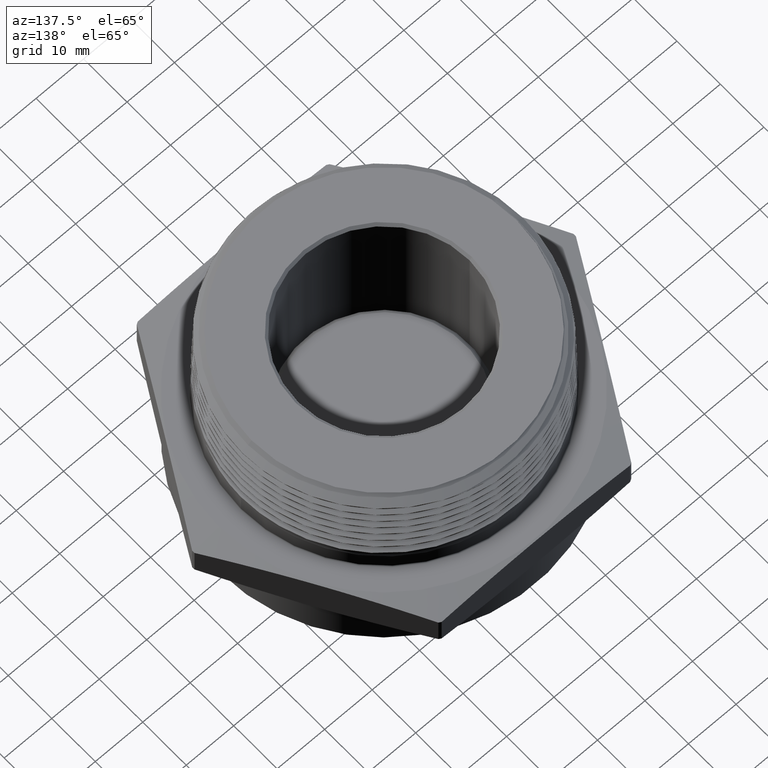
[diagram: clean part render]
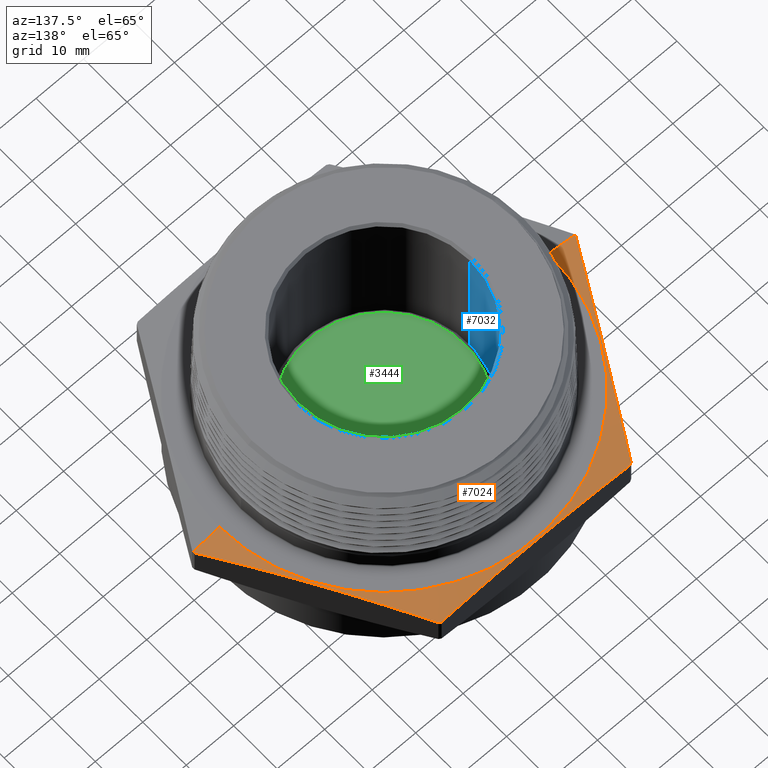
[diagram: same view with three faces highlighted in distinct colors, each labeled with its STEP entity id]
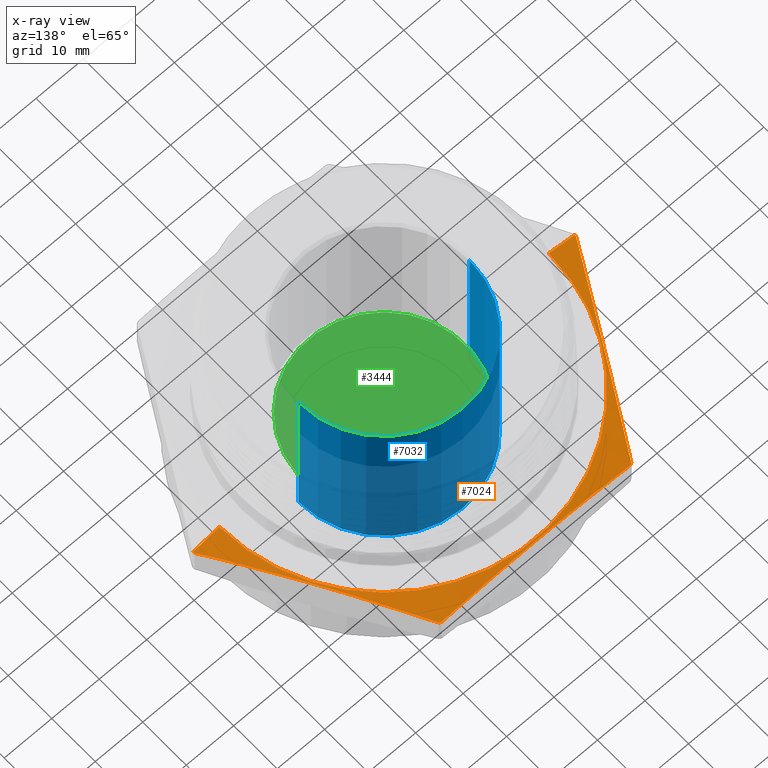
[diagram: x-ray of the same camera — body ghosted, the three highlighted faces saturated]
A machine part, auxiliary view with three faces highlighted in distinct colors.
The next image is the same camera in x-ray (body ghosted, the three faces saturated) — at least one of them is partly hidden behind the body in this view.
Their STEP definitions:

[orange] entity #7024 — the highlighted conical surface has half-angle 78 deg.
#15 = B_SPLINE_CURVE_WITH_KNOTS ( 'NONE', 3,
 ( #1078, #1076, #1087, #1089, #1091, #1093, #1095, #1097, #1099 ),
 .UNSPECIFIED., .F., .F.,
 ( 4, 2, 1, 2, 4 ),
 ( 1.903613379330127500E-006, 0.009930605507436424800, 0.01985930740149351900, 0.02978800929555061200, 0.03971671118960770600 ),
 .UNSPECIFIED. ) ;
#16 = B_SPLINE_CURVE_WITH_KNOTS ( 'NONE', 3,
 ( #1104, #1102, #1114, #1116, #1118, #1120, #1122, #1124, #1126, #1128 ),
 .UNSPECIFIED., .F., .F.,
 ( 4, 2, 2, 2, 4 ),
 ( 0.03377675413933822800, 0.04374512694864142500, 0.05371349975794462200, 0.06368187256724781900, 0.07365024537655101600 ),
 .UNSPECIFIED. ) ;
#17 = B_SPLINE_CURVE_WITH_KNOTS ( 'NONE', 3,
 ( #1133, #1131, #1143, #1145, #1147, #1149, #1151, #1153, #1155 ),
 .UNSPECIFIED., .F., .F.,
 ( 4, 2, 1, 2, 4 ),
 ( 1.903613379468012400E-006, 0.009930605507436558400, 0.01985930740149364700, 0.02978800929555073700, 0.03971671118960783100 ),
 .UNSPECIFIED. ) ;
#1064 = CARTESIAN_POINT ( 'NONE',  ( 4.141455608242866600E-017, 0.0000000000000000000, 0.3299999999999998500 ) ) ;
#1066 = DIRECTION ( 'NONE',  ( -1.254986547952384500E-016, -0.0000000000000000000, -1.000000000000000000 ) ) ;
#1068 = DIRECTION ( 'NONE',  ( -1.000000000000000000, 0.0000000000000000000, 1.501015381134210600E-016 ) ) ;
#1070 = CARTESIAN_POINT ( 'NONE',  ( 1.365000000000000000, 1.671642880836137200E-016, 0.3299999999999996300 ) ) ;
#1073 = DIRECTION ( 'NONE',  ( 0.9781476007338069100, 1.197885328332319900E-016, -0.2079116908177526000 ) ) ;
#1076 = CARTESIAN_POINT ( 'NONE',  ( 0.8650401174064535900, 1.251706566066674400, 0.2976252195393022100 ) ) ;
#1078 = CARTESIAN_POINT ( 'NONE',  ( 0.7998911548470237800, 1.364547879280009400, 0.2839361787795280400 ) ) ;
#1080 = CARTESIAN_POINT ( 'NONE',  ( 3.563360848453111300E-017, 0.0000000000000000000, 0.2839361787795281500 ) ) ;
#1082 = DIRECTION ( 'NONE',  ( -1.254986547952384500E-016, -0.0000000000000000000, -1.000000000000000000 ) ) ;
#1084 = DIRECTION ( 'NONE',  ( -1.000000000000000000, 0.0000000000000000000, 1.295358692765665400E-016 ) ) ;
#1087 = CARTESIAN_POINT ( 'NONE',  ( 0.9301890799658836300, 1.138865252853339600, 0.3087202058984833700 ) ) ;
#1089 = CARTESIAN_POINT ( 'NONE',  ( 1.060487005084742800, 0.9131826264266698100, 0.3238670318127604400 ) ) ;
#1091 = CARTESIAN_POINT ( 'NONE',  ( 1.190784930203602900, 0.6875000000000005600, 0.3318818369538387200 ) ) ;
#1093 = CARTESIAN_POINT ( 'NONE',  ( 1.321082855322462300, 0.4618173735733307500, 0.3238670318127604400 ) ) ;
#1095 = CARTESIAN_POINT ( 'NONE',  ( 1.451380780441322100, 0.2361347471466610500, 0.3087202058984833100 ) ) ;
#1097 = CARTESIAN_POINT ( 'NONE',  ( 1.516529743000751800, 0.1232934339333261600, 0.2976252195393021500 ) ) ;
#1099 = CARTESIAN_POINT ( 'NONE',  ( 1.581678705560181500, 0.01045212071999139900, 0.2839361787795279300 ) ) ;
#1102 = CARTESIAN_POINT ( 'NONE',  ( -0.6515949468959755200, 1.375000000000000200, 0.2976141545312431200 ) ) ;
#1104 = CARTESIAN_POINT ( 'NONE',  ( -0.7817875507131566400, 1.375000000000000000, 0.2839361787795282600 ) ) ;
#1107 = CARTESIAN_POINT ( 'NONE',  ( 3.563360848453111300E-017, 0.0000000000000000000, 0.2839361787795281500 ) ) ;
#1109 = DIRECTION ( 'NONE',  ( -1.254986547952384500E-016, -0.0000000000000000000, -1.000000000000000000 ) ) ;
#1111 = DIRECTION ( 'NONE',  ( -1.000000000000000000, 0.0000000000000000000, 1.295358692765665400E-016 ) ) ;
#1114 = CARTESIAN_POINT ( 'NONE',  ( -0.5209049358096944400, 1.375000000000000200, 0.3087455417894801600 ) ) ;
#1116 = CARTESIAN_POINT ( 'NONE',  ( -0.2599153173382529000, 1.374999999999999800, 0.3238978867657162900 ) ) ;
#1118 = CARTESIAN_POINT ( 'NONE',  ( -0.1295008694142238700, 1.375000000000000000, 0.3278909755349976300 ) ) ;
#1120 = CARTESIAN_POINT ( 'NONE',  ( 0.1311481683233736700, 1.375000000000000200, 0.3278577883603119900 ) ) ;
#1122 = CARTESIAN_POINT ( 'NONE',  ( 0.2613827868470718400, 1.375000000000000000, 0.3238327925198560300 ) ) ;
#1124 = CARTESIAN_POINT ( 'NONE',  ( 0.5216927118626059100, 1.375000000000000000, 0.3086795276896743800 ) ) ;
#1126 = CARTESIAN_POINT ( 'NONE',  ( 0.6517690188196205700, 1.375000000000000000, 0.2975958666141043100 ) ) ;
#1128 = CARTESIAN_POINT ( 'NONE',  ( 0.7817875507131566400, 1.375000000000000000, 0.2839361787795280400 ) ) ;
#1131 = CARTESIAN_POINT ( 'NONE',  ( -1.516529743000751800, 0.1232934339333255200, 0.2976252195393025400 ) ) ;
#1133 = CARTESIAN_POINT ( 'NONE',  ( -1.581678705560181500, 0.01045212071999071300, 0.2839361787795283700 ) ) ;
#1136 = CARTESIAN_POINT ( 'NONE',  ( 3.563360848453111300E-017, 0.0000000000000000000, 0.2839361787795281500 ) ) ;
#1138 = DIRECTION ( 'NONE',  ( -1.254986547952384500E-016, -0.0000000000000000000, -1.000000000000000000 ) ) ;
#1140 = DIRECTION ( 'NONE',  ( -1.000000000000000000, 0.0000000000000000000, 1.295358692765665400E-016 ) ) ;
#1143 = CARTESIAN_POINT ( 'NONE',  ( -1.451380780441321900, 0.2361347471466603300, 0.3087202058984836500 ) ) ;
#1145 = CARTESIAN_POINT ( 'NONE',  ( -1.321082855322462300, 0.4618173735733299100, 0.3238670318127607800 ) ) ;
#1147 = CARTESIAN_POINT ( 'NONE',  ( -1.190784930203602900, 0.6874999999999991100, 0.3318818369538388800 ) ) ;
#1149 = CARTESIAN_POINT ( 'NONE',  ( -1.060487005084743700, 0.9131826264266692500, 0.3238670318127608300 ) ) ;
#1151 = CARTESIAN_POINT ( 'NONE',  ( -0.9301890799658841800, 1.138865252853339200, 0.3087202058984836500 ) ) ;
#1153 = CARTESIAN_POINT ( 'NONE',  ( -0.8650401174064544800, 1.251706566066673500, 0.2976252195393026000 ) ) ;
#1155 = CARTESIAN_POINT ( 'NONE',  ( -0.7998911548470244400, 1.364547879280008800, 0.2839361787795282600 ) ) ;
#1158 = CARTESIAN_POINT ( 'NONE',  ( 3.563360848453111300E-017, 0.0000000000000000000, 0.2839361787795281500 ) ) ;
#1159 = DIRECTION ( 'NONE',  ( -1.254986547952384500E-016, -0.0000000000000000000, -1.000000000000000000 ) ) ;
#1160 = DIRECTION ( 'NONE',  ( -1.000000000000000000, 0.0000000000000000000, 1.295358692765665400E-016 ) ) ;
#2940 = VECTOR ( 'NONE', #3053, 39.37007874015748100 ) ;
#2941 = LINE ( 'NONE', #3054, #2940 ) ;
#3053 = DIRECTION ( 'NONE',  ( -0.9781476007338071300, 0.0000000000000000000, -0.2079116908177524000 ) ) ;
#3054 = CARTESIAN_POINT ( 'NONE',  ( -1.365000000000000000, 0.0000000000000000000, 0.3300000000000000200 ) ) ;
#3212 = VERTEX_POINT ( 'NONE', #8002 ) ;
#3271 = EDGE_CURVE ( 'NONE', #3212, #4809, #2941, .T. ) ;
#3332 = EDGE_LOOP ( 'NONE', ( #6883, #6884, #6885, #6886, #6887, #6888, #6889, #6890, #6891, #6892 ) ) ;
#4039 = CARTESIAN_POINT ( 'NONE',  ( 0.7998911548470237800, 1.364547879280009400, 0.2839361787795280400 ) ) ;
#4041 = CARTESIAN_POINT ( 'NONE',  ( -0.7998911548470244400, 1.364547879280008800, 0.2839361787795282600 ) ) ;
#4054 = CARTESIAN_POINT ( 'NONE',  ( 1.581713240271471100, 1.937040056867445500E-016, 0.2839361787795279300 ) ) ;
#4055 = CARTESIAN_POINT ( 'NONE',  ( 1.581678705560181500, 0.01045212071999139900, 0.2839361787795279300 ) ) ;
#4056 = CARTESIAN_POINT ( 'NONE',  ( -0.7817875507131566400, 1.375000000000000000, 0.2839361787795282600 ) ) ;
#4061 = CARTESIAN_POINT ( 'NONE',  ( 0.7817875507131566400, 1.375000000000000000, 0.2839361787795280400 ) ) ;
#4062 = CARTESIAN_POINT ( 'NONE',  ( -1.581713240271471100, 0.0000000000000000000, 0.2839361787795283700 ) ) ;
#4070 = CARTESIAN_POINT ( 'NONE',  ( 1.364999999999999800, 1.671642880836137000E-016, 0.3299999999999996300 ) ) ;
#4786 = VERTEX_POINT ( 'NONE', #4039 ) ;
#4800 = VERTEX_POINT ( 'NONE', #4041 ) ;
#4801 = VERTEX_POINT ( 'NONE', #4054 ) ;
#4802 = VERTEX_POINT ( 'NONE', #4055 ) ;
#4803 = VERTEX_POINT ( 'NONE', #4056 ) ;
#4808 = VERTEX_POINT ( 'NONE', #4061 ) ;
#4809 = VERTEX_POINT ( 'NONE', #4062 ) ;
#4817 = VERTEX_POINT ( 'NONE', #4070 ) ;
#5434 = CARTESIAN_POINT ( 'NONE',  ( -1.581678705560181500, 0.01045212071999071300, 0.2839361787795283700 ) ) ;
#5485 = AXIS2_PLACEMENT_3D ( 'NONE', #7336, #7332, #7334 ) ;
#6860 = VERTEX_POINT ( 'NONE', #5434 ) ;
#6883 = ORIENTED_EDGE ( 'NONE', *, *, #7072, .T. ) ;
#6884 = ORIENTED_EDGE ( 'NONE', *, *, #7073, .T. ) ;
#6885 = ORIENTED_EDGE ( 'NONE', *, *, #7074, .F. ) ;
#6886 = ORIENTED_EDGE ( 'NONE', *, *, #7075, .F. ) ;
#6887 = ORIENTED_EDGE ( 'NONE', *, *, #7076, .F. ) ;
#6888 = ORIENTED_EDGE ( 'NONE', *, *, #7077, .F. ) ;
#6889 = ORIENTED_EDGE ( 'NONE', *, *, #7078, .F. ) ;
#6890 = ORIENTED_EDGE ( 'NONE', *, *, #7079, .F. ) ;
#6891 = ORIENTED_EDGE ( 'NONE', *, *, #7080, .F. ) ;
#6892 = ORIENTED_EDGE ( 'NONE', *, *, #3271, .F. ) ;
#7024 = ADVANCED_FACE ( 'NONE', ( #7197 ), #7205, .T. ) ;
#7072 = EDGE_CURVE ( 'NONE', #3212, #4817, #8030, .T. ) ;
#7073 = EDGE_CURVE ( 'NONE', #4817, #4801, #8029, .T. ) ;
#7074 = EDGE_CURVE ( 'NONE', #4802, #4801, #8033, .T. ) ;
#7075 = EDGE_CURVE ( 'NONE', #4786, #4802, #15, .T. ) ;
#7076 = EDGE_CURVE ( 'NONE', #4808, #4786, #8036, .T. ) ;
#7077 = EDGE_CURVE ( 'NONE', #4803, #4808, #16, .T. ) ;
#7078 = EDGE_CURVE ( 'NONE', #4800, #4803, #8037, .T. ) ;
#7079 = EDGE_CURVE ( 'NONE', #6860, #4800, #17, .T. ) ;
#7080 = EDGE_CURVE ( 'NONE', #4809, #6860, #8038, .T. ) ;
#7197 = FACE_OUTER_BOUND ( 'NONE', #3332, .T. ) ;
#7205 = CONICAL_SURFACE ( 'NONE', #5485, 1.365000000000000000, 1.361356816555584000 ) ;
#7332 = DIRECTION ( 'NONE',  ( -1.254986547952384500E-016, -0.0000000000000000000, -1.000000000000000000 ) ) ;
#7334 = DIRECTION ( 'NONE',  ( -1.000000000000000000, 0.0000000000000000000, 1.501015381134210600E-016 ) ) ;
#7336 = CARTESIAN_POINT ( 'NONE',  ( 4.141455608242866600E-017, 0.0000000000000000000, 0.3299999999999998500 ) ) ;
#7902 = AXIS2_PLACEMENT_3D ( 'NONE', #1064, #1066, #1068 ) ;
#7903 = AXIS2_PLACEMENT_3D ( 'NONE', #1080, #1082, #1084 ) ;
#7904 = AXIS2_PLACEMENT_3D ( 'NONE', #1107, #1109, #1111 ) ;
#7905 = AXIS2_PLACEMENT_3D ( 'NONE', #1136, #1138, #1140 ) ;
#7906 = AXIS2_PLACEMENT_3D ( 'NONE', #1158, #1159, #1160 ) ;
#8002 = CARTESIAN_POINT ( 'NONE',  ( -1.365000000000000400, 0.0000000000000000000, 0.3300000000000000200 ) ) ;
#8029 = LINE ( 'NONE', #1070, #8034 ) ;
#8030 = CIRCLE ( 'NONE', #7902, 1.365000000000000000 ) ;
#8033 = CIRCLE ( 'NONE', #7903, 1.581713240271471100 ) ;
#8034 = VECTOR ( 'NONE', #1073, 39.37007874015748900 ) ;
#8036 = CIRCLE ( 'NONE', #7904, 1.581713240271471100 ) ;
#8037 = CIRCLE ( 'NONE', #7905, 1.581713240271471100 ) ;
#8038 = CIRCLE ( 'NONE', #7906, 1.581713240271471100 ) ;

[blue] entity #7032 — the highlighted cylindrical surface (partial cylindrical patch) has radius 18.034 mm, axis along (0, 0, -1).
#389 = AXIS2_PLACEMENT_3D ( 'NONE', #4862, #4863, #4864 ) ;
#390 = AXIS2_PLACEMENT_3D ( 'NONE', #4866, #4867, #4868 ) ;
#2914 = EDGE_LOOP ( 'NONE', ( #3305, #3306, #3307, #3308 ) ) ;
#3016 = CIRCLE ( 'NONE', #389, 0.7099999999999998500 ) ;
#3030 = CIRCLE ( 'NONE', #390, 0.7099999999999998500 ) ;
#3052 = CARTESIAN_POINT ( 'NONE',  ( 0.7099999999999998500, 8.694992273946205800E-017, 1.179999999999999900 ) ) ;
#3217 = VERTEX_POINT ( 'NONE', #8011 ) ;
#3220 = VERTEX_POINT ( 'NONE', #8100 ) ;
#3224 = VERTEX_POINT ( 'NONE', #7110 ) ;
#3232 = VERTEX_POINT ( 'NONE', #3052 ) ;
#3305 = ORIENTED_EDGE ( 'NONE', *, *, #4840, .F. ) ;
#3306 = ORIENTED_EDGE ( 'NONE', *, *, #4825, .F. ) ;
#3307 = ORIENTED_EDGE ( 'NONE', *, *, #4841, .T. ) ;
#3308 = ORIENTED_EDGE ( 'NONE', *, *, #4826, .T. ) ;
#4825 = EDGE_CURVE ( 'NONE', #3217, #3232, #3016, .T. ) ;
#4826 = EDGE_CURVE ( 'NONE', #3224, #3220, #3030, .T. ) ;
#4840 = EDGE_CURVE ( 'NONE', #3232, #3220, #7118, .T. ) ;
#4841 = EDGE_CURVE ( 'NONE', #3217, #3224, #7120, .T. ) ;
#4862 = CARTESIAN_POINT ( 'NONE',  ( -2.481850798805822400E-018, 0.0000000000000000000, 1.179999999999999900 ) ) ;
#4863 = DIRECTION ( 'NONE',  ( 1.194951895306585200E-017, -0.0000000000000000000, -1.000000000000000000 ) ) ;
#4864 = DIRECTION ( 'NONE',  ( -1.000000000000000000, 0.0000000000000000000, 0.0000000000000000000 ) ) ;
#4866 = CARTESIAN_POINT ( 'NONE',  ( 1.471350697465593800E-017, 0.0000000000000000000, -0.2590000000000000100 ) ) ;
#4867 = DIRECTION ( 'NONE',  ( 1.194951895306585200E-017, -0.0000000000000000000, -1.000000000000000000 ) ) ;
#4868 = DIRECTION ( 'NONE',  ( -1.000000000000000000, 0.0000000000000000000, 0.0000000000000000000 ) ) ;
#5384 = CARTESIAN_POINT ( 'NONE',  ( 0.7099999999999998500, 8.694992273946205800E-017, -0.3599999999999999900 ) ) ;
#5385 = DIRECTION ( 'NONE',  ( 1.194951895306585400E-017, -0.0000000000000000000, -1.000000000000000000 ) ) ;
#5386 = CARTESIAN_POINT ( 'NONE',  ( -0.7099999999999998500, 0.0000000000000000000, -0.3599999999999999900 ) ) ;
#5387 = DIRECTION ( 'NONE',  ( 1.194951895306585400E-017, -0.0000000000000000000, -1.000000000000000000 ) ) ;
#5497 = AXIS2_PLACEMENT_3D ( 'NONE', #7362, #7358, #7360 ) ;
#7032 = ADVANCED_FACE ( 'NONE', ( #7210 ), #7219, .F. ) ;
#7110 = CARTESIAN_POINT ( 'NONE',  ( -0.7099999999999998500, 0.0000000000000000000, -0.2590000000000000100 ) ) ;
#7118 = LINE ( 'NONE', #5384, #7121 ) ;
#7120 = LINE ( 'NONE', #5386, #7123 ) ;
#7121 = VECTOR ( 'NONE', #5385, 39.37007874015748100 ) ;
#7123 = VECTOR ( 'NONE', #5387, 39.37007874015748100 ) ;
#7210 = FACE_OUTER_BOUND ( 'NONE', #2914, .T. ) ;
#7219 = CYLINDRICAL_SURFACE ( 'NONE', #5497, 0.7099999999999998500 ) ;
#7358 = DIRECTION ( 'NONE',  ( 1.194951895306585200E-017, -0.0000000000000000000, -1.000000000000000000 ) ) ;
#7360 = DIRECTION ( 'NONE',  ( -1.000000000000000000, 0.0000000000000000000, 0.0000000000000000000 ) ) ;
#7362 = CARTESIAN_POINT ( 'NONE',  ( 1.592040838891558700E-017, 0.0000000000000000000, -0.3599999999999999900 ) ) ;
#8011 = CARTESIAN_POINT ( 'NONE',  ( -0.7099999999999998500, 0.0000000000000000000, 1.179999999999999900 ) ) ;
#8100 = CARTESIAN_POINT ( 'NONE',  ( 0.7099999999999998500, 8.694992273946205800E-017, -0.2590000000000000100 ) ) ;

[green] entity #3444 — the highlighted planar face has unit normal (0, 0, 1).
#383 = AXIS2_PLACEMENT_3D ( 'NONE', #4033, #4037, #4038 ) ;
#391 = AXIS2_PLACEMENT_3D ( 'NONE', #5354, #5355, #5356 ) ;
#1180 = CARTESIAN_POINT ( 'NONE',  ( 0.1166800539378861200, -0.1164497935006357400, 0.2755905511811023700 ) ) ;
#1181 = DIRECTION ( 'NONE',  ( -0.0000000000000000000, 0.0000000000000000000, 1.000000000000000000 ) ) ;
#1182 = DIRECTION ( 'NONE',  ( 1.000000000000000000, 0.0000000000000000000, 0.0000000000000000000 ) ) ;
#2861 = ORIENTED_EDGE ( 'NONE', *, *, #4830, .T. ) ;
#2887 = ORIENTED_EDGE ( 'NONE', *, *, #7088, .T. ) ;
#3024 = FACE_OUTER_BOUND ( 'NONE', #3337, .T. ) ;
#3039 = CIRCLE ( 'NONE', #391, 0.6750000000000000400 ) ;
#3048 = CARTESIAN_POINT ( 'NONE',  ( -0.5583199460621138800, -0.1164497935006357400, 0.2755905511811023700 ) ) ;
#3050 = CARTESIAN_POINT ( 'NONE',  ( 0.7916800539378862100, -0.1164497935006356500, 0.2755905511811023700 ) ) ;
#3228 = VERTEX_POINT ( 'NONE', #3048 ) ;
#3230 = VERTEX_POINT ( 'NONE', #3050 ) ;
#3337 = EDGE_LOOP ( 'NONE', ( #2861, #2887 ) ) ;
#3444 = ADVANCED_FACE ( 'NONE', ( #3024 ), #4035, .T. ) ;
#4033 = CARTESIAN_POINT ( 'NONE',  ( 0.0000000000000000000, 0.0000000000000000000, 0.2755905511811023700 ) ) ;
#4035 = PLANE ( 'NONE',  #383 ) ;
#4037 = DIRECTION ( 'NONE',  ( -0.0000000000000000000, 0.0000000000000000000, 1.000000000000000000 ) ) ;
#4038 = DIRECTION ( 'NONE',  ( 1.000000000000000000, 0.0000000000000000000, 0.0000000000000000000 ) ) ;
#4830 = EDGE_CURVE ( 'NONE', #3228, #3230, #3039, .T. ) ;
#5354 = CARTESIAN_POINT ( 'NONE',  ( 0.1166800539378861200, -0.1164497935006357400, 0.2755905511811023700 ) ) ;
#5355 = DIRECTION ( 'NONE',  ( -0.0000000000000000000, 0.0000000000000000000, 1.000000000000000000 ) ) ;
#5356 = DIRECTION ( 'NONE',  ( 1.000000000000000000, 0.0000000000000000000, 0.0000000000000000000 ) ) ;
#7088 = EDGE_CURVE ( 'NONE', #3230, #3228, #8049, .T. ) ;
#7910 = AXIS2_PLACEMENT_3D ( 'NONE', #1180, #1181, #1182 ) ;
#8049 = CIRCLE ( 'NONE', #7910, 0.6750000000000000400 ) ;